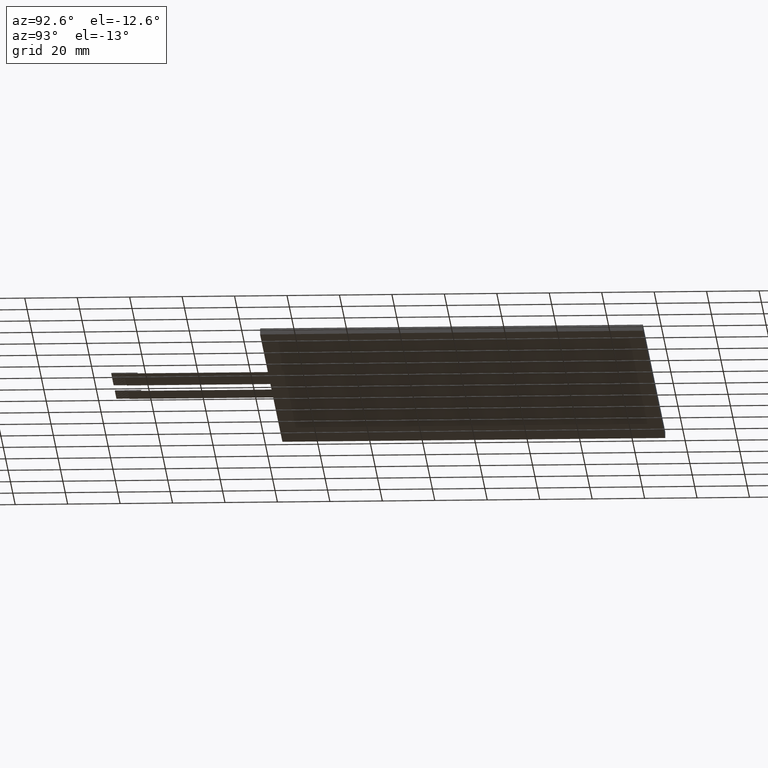
[diagram: clean part render]
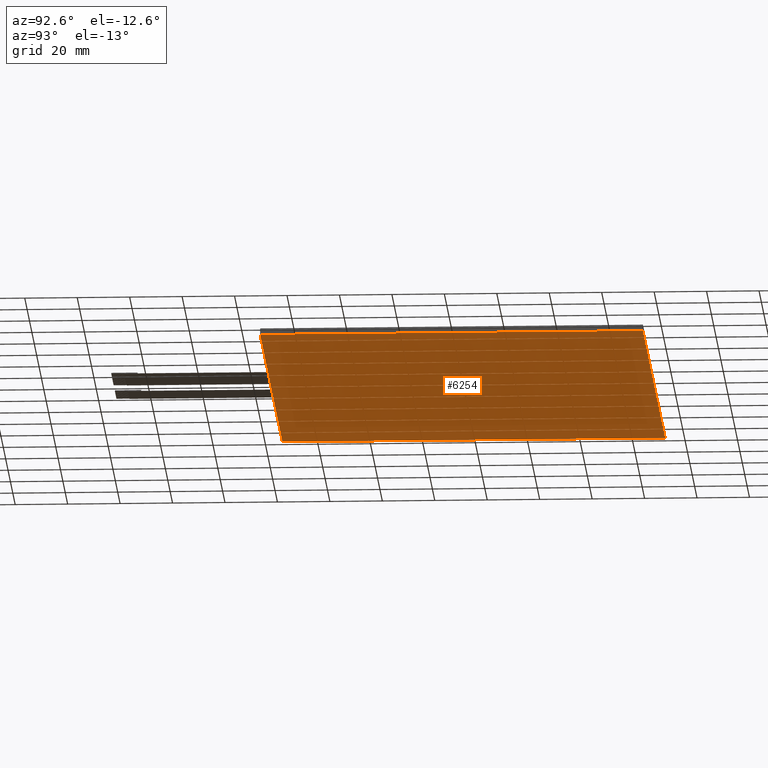
[diagram: same view with one face highlighted and labeled with its STEP entity id]
A machine part, auxiliary view. The second image highlights one B-rep face of the part: STEP entity #6254.
In plain terms, the highlighted planar face has unit normal (0, 0, -1).
Its self-contained STEP definition (entity closure, byte-faithful):
#316=PLANE('',#6584);
#618=FACE_OUTER_BOUND('',#924,.T.);
#924=EDGE_LOOP('',(#5945,#5946,#5947,#5948));
#1798=LINE('',#9856,#2678);
#1800=LINE('',#9860,#2680);
#1802=LINE('',#9864,#2682);
#1804=LINE('',#9867,#2684);
#2678=VECTOR('',#8070,10.);
#2680=VECTOR('',#8074,10.);
#2682=VECTOR('',#8078,10.);
#2684=VECTOR('',#8082,10.);
#3281=VERTEX_POINT('',#9853);
#3282=VERTEX_POINT('',#9855);
#3283=VERTEX_POINT('',#9859);
#3284=VERTEX_POINT('',#9863);
#4166=EDGE_CURVE('',#3282,#3281,#1798,.T.);
#4168=EDGE_CURVE('',#3283,#3282,#1800,.T.);
#4170=EDGE_CURVE('',#3284,#3283,#1802,.T.);
#4172=EDGE_CURVE('',#3281,#3284,#1804,.T.);
#5945=ORIENTED_EDGE('',*,*,#4172,.T.);
#5946=ORIENTED_EDGE('',*,*,#4170,.T.);
#5947=ORIENTED_EDGE('',*,*,#4168,.T.);
#5948=ORIENTED_EDGE('',*,*,#4166,.T.);
#6254=ADVANCED_FACE('',(#618),#316,.T.);
#6584=AXIS2_PLACEMENT_3D('',#9869,#8085,#8086);
#8070=DIRECTION('',(-1.,-1.42032796327312E-16,0.));
#8074=DIRECTION('',(1.2166827667125E-16,-1.,0.));
#8078=DIRECTION('',(1.,0.,0.));
#8082=DIRECTION('',(-2.433365533425E-16,1.,0.));
#8085=DIRECTION('center_axis',(0.,0.,-1.));
#8086=DIRECTION('ref_axis',(-1.,0.,0.));
#9853=CARTESIAN_POINT('',(-93.8,-74.18,-2.35));
#9855=CARTESIAN_POINT('',(93.8,-74.18,-2.35));
#9856=CARTESIAN_POINT('',(-93.8,-74.18,-2.35));
#9859=CARTESIAN_POINT('',(93.8,71.82,-2.35));
#9860=CARTESIAN_POINT('',(93.8,-74.18,-2.35));
#9863=CARTESIAN_POINT('',(-93.8,71.82,-2.35));
#9864=CARTESIAN_POINT('',(93.8,71.82,-2.35));
#9867=CARTESIAN_POINT('',(-93.8,71.8200000000001,-2.35));
#9869=CARTESIAN_POINT('Origin',(-1.77635683940025E-14,-1.17999999999999,
-2.35));